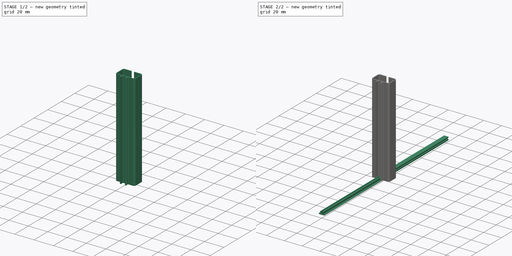
[diagram: build sequence overview — one tinted view per stage of 2, left to right]
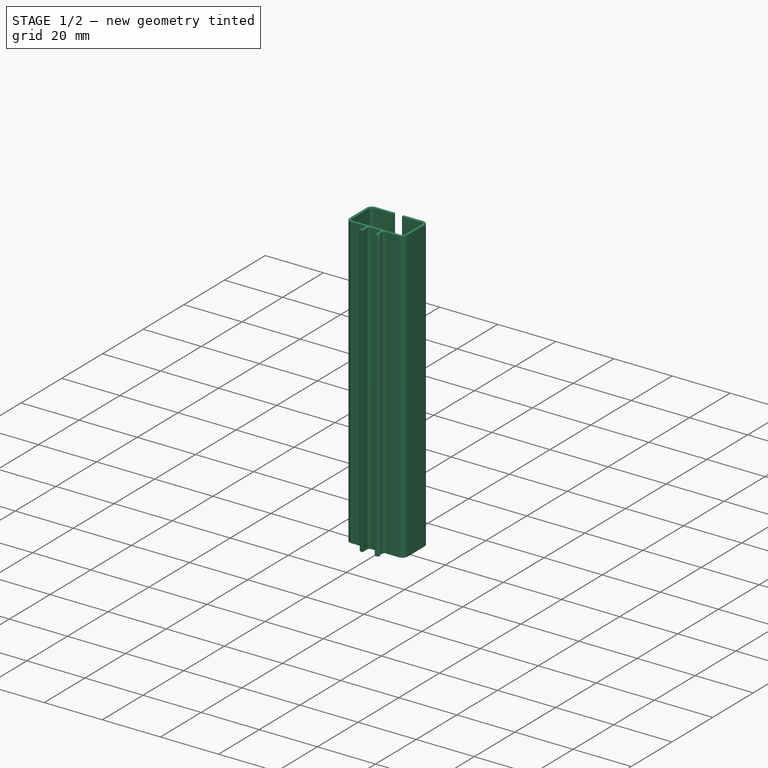
[diagram: stage 1 of 2 — iso view after this stage's code; geometry added in this stage tinted green]
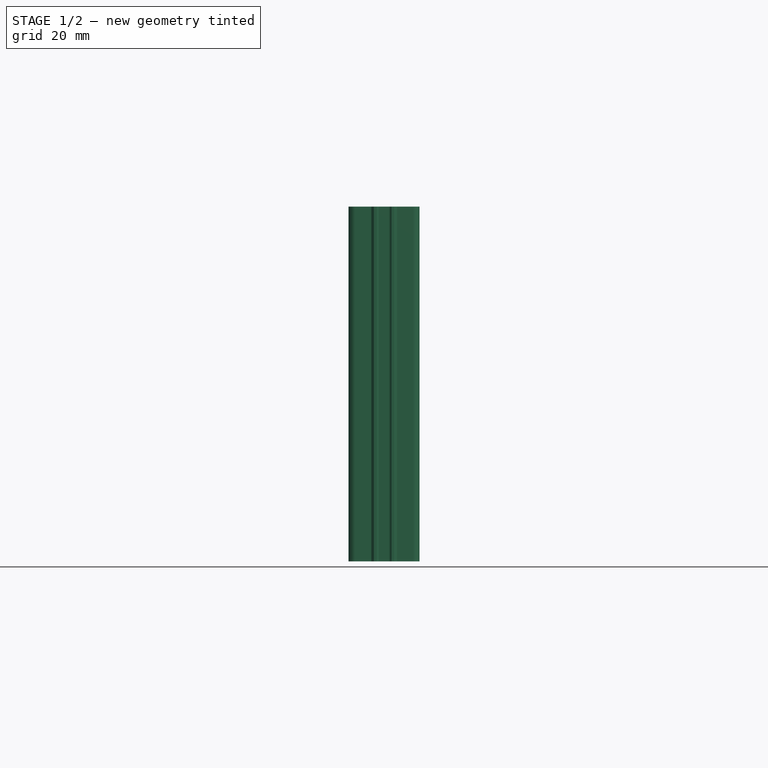
[diagram: stage 1 of 2 — front view after this stage's code; geometry added in this stage tinted green]
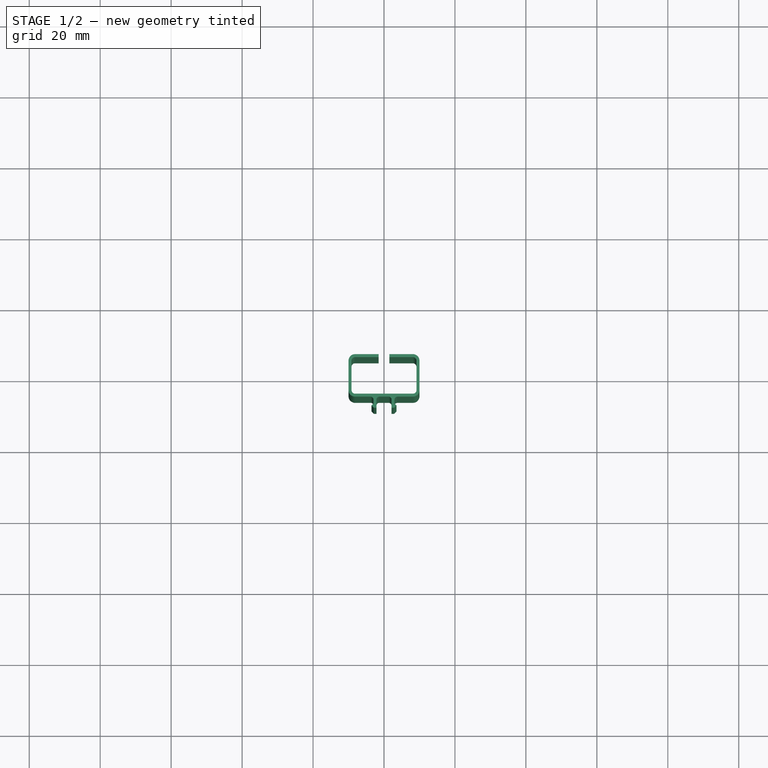
[diagram: stage 1 of 2 — top view after this stage's code; geometry added in this stage tinted green]
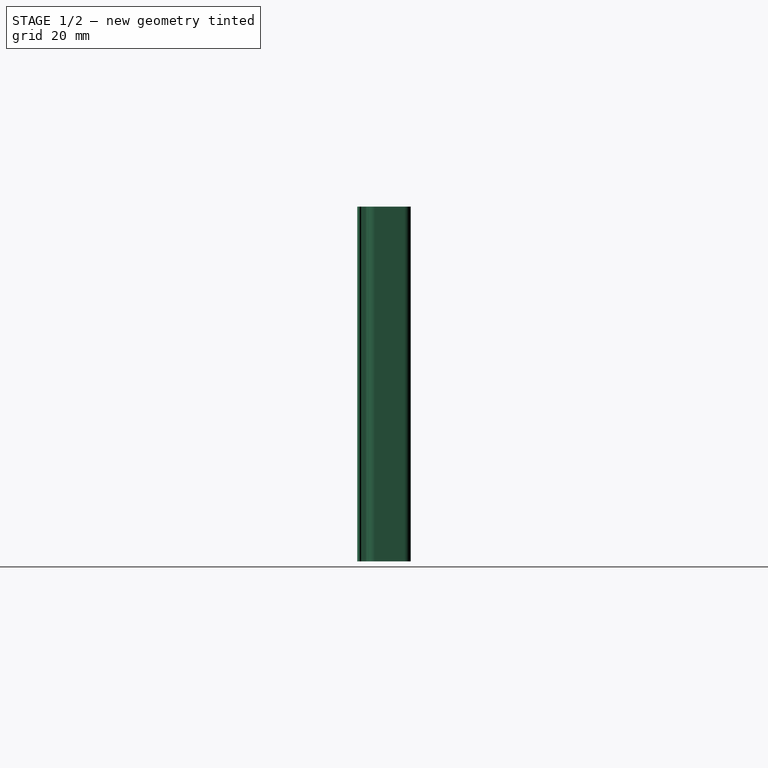
[diagram: stage 1 of 2 — right view after this stage's code; geometry added in this stage tinted green]
FCSTD DOCUMENT  (FreeCAD 0.19R24366 (Git))
Label: CableGuide
License: All rights reserved
LicenseURL: http://en.wikipedia.org/wiki/All_rights_reserved
objects: Sketcher::SketchObject×3, PartDesign::Pad×3, PartDesign::Body×3, Spreadsheet::Sheet×1, PartDesign::Fillet×1
note: 14 computed .brp shape members not serialized (recipe doc carries the construction recipe); baked Part::Feature solids carry a one-line shape summary decoded from their .brp

FEATURE [PartDesign::Body] Body  label="Cap2Body"
  Group = -> [Sketch003,Pad003]
  Origin = -> Origin003
  Tip = -> Pad003
FEATURE [Sketcher::SketchObject] Sketch004  label="guide"
  FullyConstrained = true
  MapMode = 5
  Support = -> [XY_Plane004]
  expr: Constraints[99] = Spreadsheet.hostthickness + Spreadsheet.thickness * 1.3
  expr: Constraints[50] = Spreadsheet.thickness
  expr: Constraints[83] = Spreadsheet.height
  expr: Constraints[94] = Spreadsheet.thickness * 0.8
  expr: Constraints[89] = Spreadsheet.thickness / 2
  expr: Constraints[114] = Spreadsheet.fixthickness
  expr: Constraints[86] = Spreadsheet.hostthickness
  expr: Constraints[90] = Spreadsheet.lockoverhang
  expr: Constraints[91] = Spreadsheet.gap
  expr: Constraints[81] = Spreadsheet.width
  sketch-geometry (42):
    g0: LineSegment StartX=-10 StartY=4.15 StartZ=0 EndX=-10 EndY=-4.15 EndZ=0
    g1: LineSegment StartX=-8.15 StartY=-6 StartZ=0 EndX=-2.975 EndY=-6 EndZ=0
    g2: LineSegment StartX=-2.975 StartY=-6 StartZ=0 EndX=-2.975 EndY=-8 EndZ=0
    g3: LineSegment StartX=-2.845 StartY=-9.105 StartZ=0 EndX=-2.125 EndY=-9.105 EndZ=0
    g4: LineSegment StartX=-2.125 StartY=-9.105 StartZ=0 EndX=-2.125 EndY=-6.8 EndZ=0
    g5: LineSegment StartX=-1.325 StartY=-6 StartZ=0 EndX=1.325 EndY=-6 EndZ=0
    g6: LineSegment StartX=2.125 StartY=-6.8 StartZ=0 EndX=2.125 EndY=-9.105 EndZ=0
    g7: LineSegment StartX=2.125 StartY=-9.105 StartZ=0 EndX=2.845 EndY=-9.105 EndZ=0
    g8: LineSegment StartX=2.975 StartY=-8 StartZ=0 EndX=2.975 EndY=-6 EndZ=0
    g9: LineSegment StartX=2.975 StartY=-6 StartZ=0 EndX=8.15 EndY=-6 EndZ=0
    g10: LineSegment StartX=10 StartY=-4.15 StartZ=0 EndX=10 EndY=4.15 EndZ=0
    g11: LineSegment StartX=8.15 StartY=6 StartZ=0 EndX=1.5 EndY=6 EndZ=0
    g12: LineSegment StartX=1.5 StartY=6 StartZ=0 EndX=1.5 EndY=5.15 EndZ=0
    g13: LineSegment StartX=1.5 StartY=5.15 StartZ=0 EndX=8.15 EndY=5.15 EndZ=0
    g14: LineSegment StartX=9.15 StartY=4.15 StartZ=0 EndX=9.15 EndY=-4.15 EndZ=0
    g15: LineSegment StartX=8.15 StartY=-5.15 StartZ=0 EndX=-8.15 EndY=-5.15 EndZ=0
    g16: LineSegment StartX=-9.15 StartY=-4.15 StartZ=0 EndX=-9.15 EndY=4.15 EndZ=0
    g17: LineSegment StartX=-8.15 StartY=5.15 StartZ=0 EndX=-1.5 EndY=5.15 EndZ=0
    g18: LineSegment StartX=-1.5 StartY=5.15 StartZ=0 EndX=-1.5 EndY=6 EndZ=0
    g19: LineSegment StartX=-1.5 StartY=6 StartZ=0 EndX=-8.15 EndY=6 EndZ=0
    g20: LineSegment StartX=-2.845 StartY=-9.105 StartZ=0 EndX=-3.525 EndY=-8.425 EndZ=0
    g21: LineSegment StartX=-3.525 StartY=-8.425 StartZ=0 EndX=-2.975 EndY=-8 EndZ=0
    g22: LineSegment StartX=2.845 StartY=-9.105 StartZ=0 EndX=3.525 EndY=-8.425 EndZ=0
    g23: LineSegment StartX=3.525 StartY=-8.425 StartZ=0 EndX=2.975 EndY=-8 EndZ=0
    g24: ArcOfCircle CenterX=-8.15 CenterY=4.15 CenterZ=0 NormalX=0 NormalY=0 NormalZ=1 AngleXU=0 Radius=1 StartAngle=1.5708 EndAngle=3.14159
    g25: ArcOfCircle CenterX=8.15 CenterY=4.15 CenterZ=0 NormalX=0 NormalY=0 NormalZ=1 AngleXU=0 Radius=1 StartAngle=1.8148e-07 EndAngle=1.5708
    g26: LineSegment StartX=-9.15 StartY=4.15 StartZ=0 EndX=-10 EndY=4.15 EndZ=0
    g27: LineSegment StartX=9.15 StartY=4.15 StartZ=0 EndX=10 EndY=4.15 EndZ=0
    g28: LineSegment StartX=2.975 StartY=-6 StartZ=0 EndX=2.975 EndY=-5.15 EndZ=0
    g29: ArcOfCircle CenterX=8.15 CenterY=-4.15 CenterZ=0 NormalX=0 NormalY=0 NormalZ=1 AngleXU=0 Radius=1 StartAngle=4.71239 EndAngle=6.28319
    g30: ArcOfCircle CenterX=-8.15 CenterY=-4.15 CenterZ=0 NormalX=0 NormalY=0 NormalZ=1 AngleXU=0 Radius=1 StartAngle=3.14159 EndAngle=4.71239
    g31: ArcOfCircle CenterX=8.15 CenterY=-4.15 CenterZ=0 NormalX=0 NormalY=0 NormalZ=1 AngleXU=0 Radius=1.85 StartAngle=4.71239 EndAngle=6.28319
    g32: ArcOfCircle CenterX=-8.15 CenterY=-4.15 CenterZ=0 NormalX=0 NormalY=0 NormalZ=1 AngleXU=0 Radius=1.85 StartAngle=3.14159 EndAngle=4.71239
    g33: ArcOfCircle CenterX=-8.15 CenterY=4.15 CenterZ=0 NormalX=0 NormalY=0 NormalZ=1 AngleXU=0 Radius=1.85 StartAngle=1.5708 EndAngle=3.14159
    g34: ArcOfCircle CenterX=8.15 CenterY=4.15 CenterZ=0 NormalX=0 NormalY=0 NormalZ=1 AngleXU=0 Radius=1.85 StartAngle=9.80976e-08 EndAngle=1.5708
    g35: LineSegment StartX=-1.5 StartY=6 StartZ=0 EndX=1.5 EndY=6 EndZ=0
    g36: ArcOfCircle CenterX=-1.325 CenterY=-6.8 CenterZ=0 NormalX=0 NormalY=0 NormalZ=1 AngleXU=0 Radius=0.8 StartAngle=1.5708 EndAngle=3.14159
    g37: ArcOfCircle CenterX=1.325 CenterY=-6.8 CenterZ=0 NormalX=0 NormalY=0 NormalZ=1 AngleXU=0 Radius=0.8 StartAngle=1.038e-13 EndAngle=1.5708
    g38: LineSegment StartX=-2.125 StartY=-6.8 StartZ=0 EndX=-2.975 EndY=-6.8 EndZ=0
    g39: LineSegment StartX=2.125 StartY=-6.8 StartZ=0 EndX=2.975 EndY=-6.8 EndZ=0
    g40: LineSegment StartX=-2.975 StartY=-6 StartZ=0 EndX=-1.325 EndY=-6 EndZ=0
    g41: LineSegment StartX=1.325 StartY=-6 StartZ=0 EndX=2.975 EndY=-6 EndZ=0
  constraints (119):
    c: Coincident(g1,g32)
    c: Coincident(g0,g32)
    c: Coincident(g0,g26)
    c: Coincident(g0,g33)
    c: Coincident(g19,g33)
    c: Coincident(g18,g19)
    c: Coincident(g17,g18)
    c: Coincident(g17,g24)
    c: Coincident(g16,g24)
    c: Coincident(g16,g26)
    c: Coincident(g24,g33)
    c: Coincident(g16,g30)
    c: Coincident(g15,g30)
    c: Coincident(g15,g29)
    c: Coincident(g14,g29)
    c: Coincident(g14,g25)
    c: Coincident(g14,g27)
    c: Coincident(g13,g25)
    c: Coincident(g12,g13)
    c: Coincident(g11,g12)
    c: Coincident(g10,g34)
    c: Coincident(g10,g31)
    c: Coincident(g8,g9)
    c: Coincident(g8,g28)
    c: Coincident(g8,g23)
    c: Coincident(g22,g23)
    c: Coincident(g7,g22)
    c: Coincident(g6,g7)
    c: Coincident(g3,g4)
    c: Coincident(g3,g20)
    c: Coincident(g20,g21)
    c: Coincident(g2,g21)
    c: Coincident(g1,g2)
    c: Horizontal(g1)
    c: Horizontal(g5)
    c: Horizontal(g9)
    c: Horizontal(g3)
    c: Horizontal(g7)
    c: Horizontal(g27)
    c: Horizontal(g26)
    c: Horizontal(g19)
    c: Vertical(g0)
    c: Vertical(g18)
    c: Vertical(g12)
    c: Vertical(g14)
    c: Vertical(g28)
    c: Vertical(g6)
    c: Vertical(g8)
    c: Vertical(g4)
    c: Vertical(g2)
    c: DistanceY(g18,g18) = 0.85
    c: Equal(g18,g26)
    c: Equal(g26,g27)
    c: Equal(g27,g28)
    c: Coincident(g35,g18)
    c: Coincident(g35,g11)
    c: Horizontal(g35)
    c: Radius(g24) = 1
    c: Equal(g24,g30)
    c: Equal(g30,g29)
    c: Equal(g29,g25)
    c: Coincident(g32,g30)
    c: Tangent(g32,g0)
    c: Tangent(g32,g1)
    c: Tangent(g33,g19)
    c: Tangent(g24,g17)
    c: Tangent(g24,g16)
    c: Tangent(g30,g16)
    c: Tangent(g30,g15)
    c: Tangent(g15,g29)
    c: Tangent(g29,g14)
    c: Tangent(g10,g31)
    c: Coincident(g31,g29)
    c: Horizontal(g15)
    c: Equal(g18,g12)
    c: Coincident(g34,g25)
    c: Tangent(g25,g13)
    c: Tangent(g25,g14)
    c: Coincident(g10,g27)
    c: DistanceX(g35,g35) = 3  'Opening'
    c: Symmetric(g17,g13,g-2)
    c: DistanceX(g0,g10) = 20
    c: Symmetric(g1,g19,g-1)
    c: DistanceY(g1,g19) = 12
    c: Equal(g4,g6)
    c: Equal(g2,g8)
    c: DistanceY(g2,g2) = 2
    c: Equal(g21,g23)
    c: Equal(g20,g22)
    c: DistanceY(g20,g2) = 0.425
    c: DistanceX(g20,g2) = 0.55
    c: DistanceX(g1,g8) = 5.95
    c: Symmetric(g8,g1,g-2)
    c: Equal(g3,g7)
    c: DistanceX(g20,g3) = 0.68
    c: Tangent(g4,g36) = 1.5708
    c: Tangent(g5,g36) = 1.5708
    c: Tangent(g5,g37) = 1.5708
    c: Tangent(g6,g37) = 1.5708
    c: DistanceY(g3,g5) = 3.105
    c: Radius(g36) = 0.8
    c: Equal(g36,g37)
    c: Coincident(g38,g4)
    c: PointOnObject(g38,g2)
    c: Horizontal(g38)
    c: Coincident(g39,g6)
    c: PointOnObject(g39,g8)
    c: Horizontal(g39)
    c: Equal(g38,g39)
    c: Coincident(g40,g5)
    c: Coincident(g1,g40)
    c: Horizontal(g40)
    c: Coincident(g41,g5)
    c: Coincident(g41,g8)
    c: DistanceX(g38,g38) = 0.85
    c: Equal(g13,g17)
    c: Tangent(g11,g34) = -1.5708
    c: Tangent(g9,g31) = -1.5708
    c: DistanceX(g20,g22) = 7.05
FEATURE [PartDesign::Pad] Pad
  AllowMultiFace = false
  Direction = (1,1,1)
  Length = 100
  Length2 = 100
  Profile = -> Sketch004
  Type = 0
  expr: Length = Spreadsheet.length
FEATURE [PartDesign::Fillet] Fillet
  Base = -> Pad [Edge20,Edge59]
  BaseFeature = -> Pad
  Radius = 0.8
  SupportTransform = false
FEATURE [PartDesign::Body] Body001  label="GuideBody"
  Group = -> [Sketch004,Pad,Fillet]
  Origin = -> Origin004
  Tip = -> Fillet
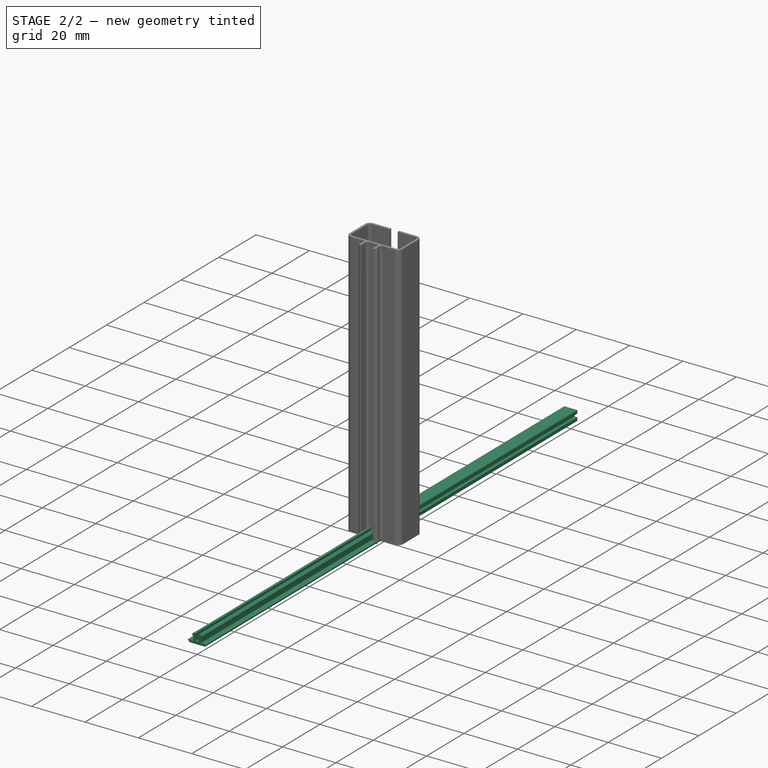
[diagram: stage 2 of 2 — iso view after this stage's code; geometry added in this stage tinted green]
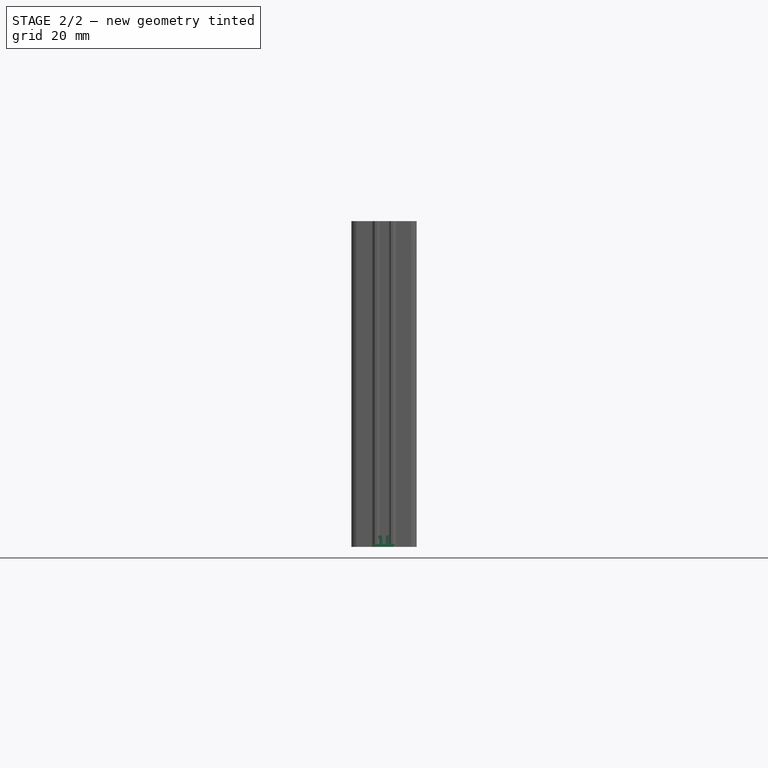
[diagram: stage 2 of 2 — front view after this stage's code; geometry added in this stage tinted green]
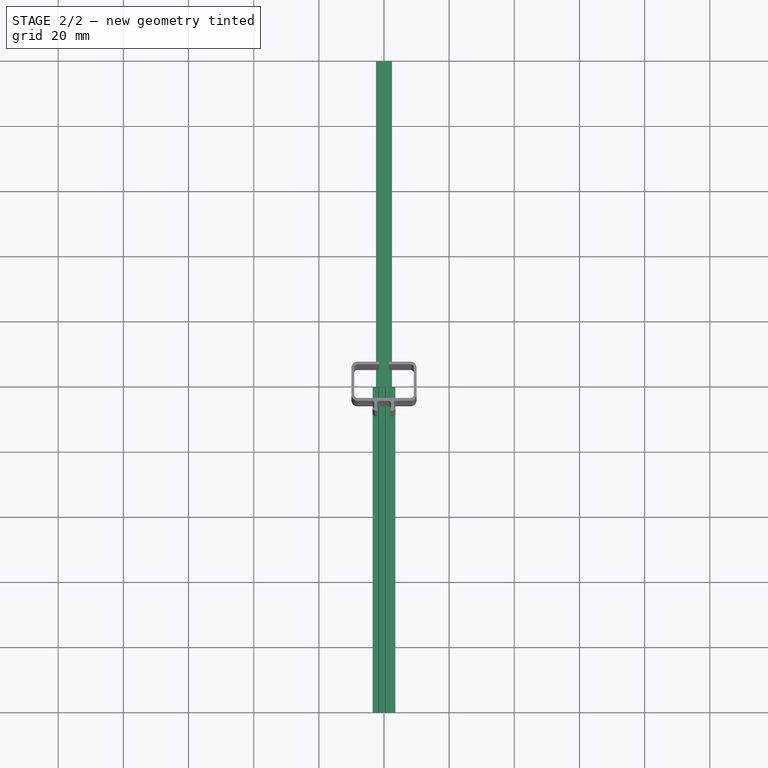
[diagram: stage 2 of 2 — top view after this stage's code; geometry added in this stage tinted green]
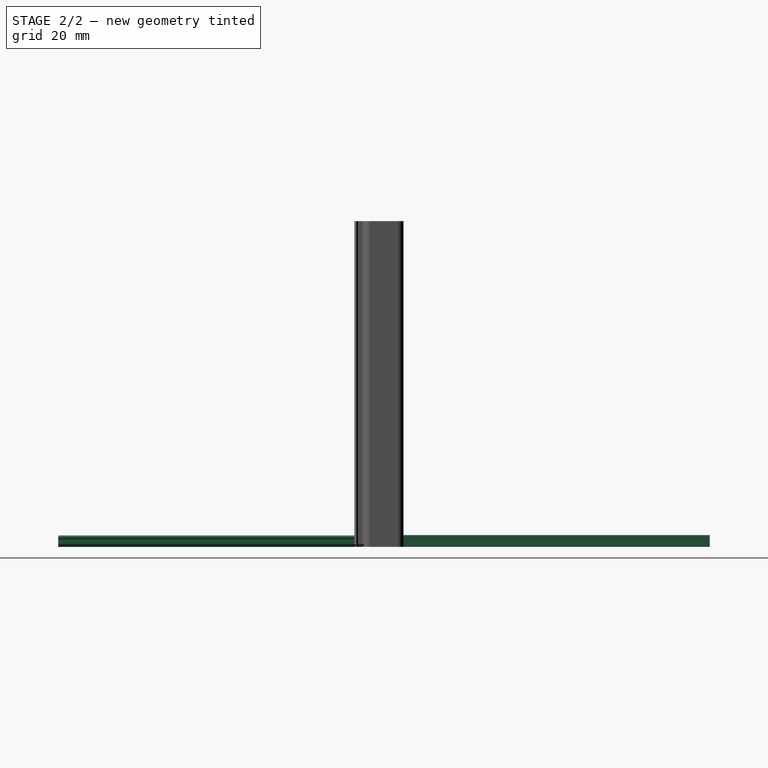
[diagram: stage 2 of 2 — right view after this stage's code; geometry added in this stage tinted green]
FEATURE [Spreadsheet::Sheet] Spreadsheet
  cells = B2=width; C2(width)==20mm; B3=height; C3(height)==12mm; B4=thickness; C4(thickness)==0.85mm; B5=length; C5(length)==100mm; B7=gap; C7(gap)==5.95mm; B8=topgap; C8(topgap)==3mm; B9=hostthickness; C9(hostthickness)==2mm; B10=fixthickness; C10(fixthickness)==0.85mm; B11=lockoverhang; C11(lockoverhang)==0.55mm
FEATURE [Sketcher::SketchObject] Sketch002  label="cap"
  FullyConstrained = true
  MapMode = 5
  Placement = pos=(0,0,0) rot=(0,0.707107,0.707107;3.14159rad)
  Support = -> [XZ_Plane002]
  expr: Constraints[22] = Spreadsheet.thickness + 0.35mm
  expr: Constraints[30] = Spreadsheet.topgap + Spreadsheet.thickness * 2 + 0.2mm
  sketch-geometry (12):
    g0: LineSegment StartX=-2.45 StartY=0 StartZ=0 EndX=2.45 EndY=2.2672e-12 EndZ=0
    g1: LineSegment StartX=2.45 StartY=2.2672e-12 StartZ=0 EndX=2.45 EndY=1.21 EndZ=0
    g2: LineSegment StartX=2.45 StartY=1.21 StartZ=0 EndX=1.35 EndY=1.21 EndZ=0
    g3: LineSegment StartX=1.35 StartY=1.21 StartZ=0 EndX=1.35 EndY=2.41 EndZ=0
    g4: LineSegment StartX=1.35 StartY=2.41 StartZ=0 EndX=2.45 EndY=2.41 EndZ=0
    g5: LineSegment StartX=2.45 StartY=2.41 StartZ=0 EndX=2.45 EndY=3.62 EndZ=0
    g6: LineSegment StartX=-2.45 StartY=3.62 StartZ=0 EndX=-2.45 EndY=2.41 EndZ=0
    g7: LineSegment StartX=-2.45 StartY=2.41 StartZ=0 EndX=-1.35 EndY=2.41 EndZ=0
    g8: LineSegment StartX=-1.35 StartY=2.41 StartZ=0 EndX=-1.35 EndY=1.21 EndZ=0
    g9: LineSegment StartX=-1.35 StartY=1.21 StartZ=0 EndX=-2.45 EndY=1.21 EndZ=0
    g10: LineSegment StartX=-2.45 StartY=3.62 StartZ=0 EndX=2.45 EndY=3.62 EndZ=0
    g11: LineSegment StartX=-2.45 StartY=0 StartZ=0 EndX=-2.45 EndY=1.21 EndZ=0
  constraints (35):
    c: PointOnObject(g0,g-1)
    c: Coincident(g0,g1)
    c: Coincident(g1,g2)
    c: Horizontal(g2)
    c: Coincident(g2,g3)
    c: Coincident(g3,g4)
    c: Horizontal(g4)
    c: Coincident(g4,g5)
    c: Coincident(g6,g7)
    c: Horizontal(g7)
    c: Coincident(g7,g8)
    c: Vertical(g8)
    c: Coincident(g8,g9)
    c: Horizontal(g9)
    c: Vertical(g3)
    c: Vertical(g5)
    c: Vertical(g1)
    c: Vertical(g6)
    c: Coincident(g6,g10)
    c: Coincident(g11,g0)
    c: Coincident(g11,g9)
    c: Vertical(g11)
    c: DistanceY(g9,g6) = 1.2
    c: DistanceY(g11,g11) = 1.21
    c: Equal(g11,g6)
    c: Equal(g11,g1)
    c: Equal(g3,g8)
    c: Equal(g6,g5)
    c: DistanceX(g8,g2) = 2.7
    c: Coincident(g5,g10)
    c: DistanceX(g10,g10) = 4.9
    c: Equal(g0,g10)
    c: PointOnObject(g9,g6)
    c: Equal(g7,g4)
    c: Symmetric(g6,g5,g-2)
FEATURE [PartDesign::Pad] Pad002  label="Cap"
  AllowMultiFace = false
  Direction = (1,1,1)
  Length = 100
  Length2 = 100
  Placement = pos=(0,0,0) rot=(1,0,0;1.5708rad)
  Profile = -> Sketch002
  Type = 0
  expr: Length = Spreadsheet.length
FEATURE [PartDesign::Body] Pad002Body  label="CapBody"
  Group = -> [Sketch002,Pad002]
  Origin = -> Origin002
  Tip = -> Pad002
FEATURE [Sketcher::SketchObject] Sketch003  label="cap2"
  FullyConstrained = true
  MapMode = 5
  Placement = pos=(0,0,0) rot=(1,0,0;1.5708rad)
  Support = -> [XZ_Plane003]
  expr: Constraints[72] = Sketch004.Constraints.Opening + 4mm
  expr: Constraints[46] = Sketch004.Constraints.Opening - 0.15mm
  sketch-geometry (30):
    g0: LineSegment StartX=-0.575 StartY=3.55 StartZ=0 EndX=-0.575 EndY=1.35 EndZ=0
    g1: LineSegment StartX=-0.075 StartY=0.85 StartZ=0 EndX=0.075 EndY=0.85 EndZ=0
    g2: LineSegment StartX=0.575 StartY=1.35 StartZ=0 EndX=0.575 EndY=3.55 EndZ=0
    g3: LineSegment StartX=0.575 StartY=3.55 StartZ=0 EndX=1.425 EndY=3.55 EndZ=0
    g4: LineSegment StartX=1.425 StartY=3.55 StartZ=0 EndX=1.825 EndY=3.15 EndZ=0
    g5: LineSegment StartX=1.825 StartY=3.15 StartZ=0 EndX=1.825 EndY=2.75 EndZ=0
    g6: LineSegment StartX=1.825 StartY=2.75 StartZ=0 EndX=1.425 EndY=2.35 EndZ=0
    g7: LineSegment StartX=1.425 StartY=2.35 StartZ=0 EndX=1.425 EndY=0.85 EndZ=0
    g8: LineSegment StartX=1.425 StartY=0.85 StartZ=0 EndX=3.5 EndY=0.85 EndZ=0
    g9: LineSegment StartX=3.5 StartY=0.85 StartZ=0 EndX=2.90482 EndY=0 EndZ=0
    g10: LineSegment StartX=2.90482 StartY=0 StartZ=0 EndX=-2.90482 EndY=0 EndZ=0
    g11: LineSegment StartX=-2.90482 StartY=0 StartZ=0 EndX=-3.5 EndY=0.85 EndZ=0
    g12: LineSegment StartX=-3.5 StartY=0.85 StartZ=0 EndX=-1.425 EndY=0.85 EndZ=0
    g13: LineSegment StartX=-1.425 StartY=0.85 StartZ=0 EndX=-1.425 EndY=2.35 EndZ=0
    g14: LineSegment StartX=-1.425 StartY=2.35 StartZ=0 EndX=-1.825 EndY=2.75 EndZ=0
    g15: LineSegment StartX=-1.825 StartY=2.75 StartZ=0 EndX=-1.825 EndY=3.15 EndZ=0
    g16: LineSegment StartX=-1.825 StartY=3.15 StartZ=0 EndX=-1.425 EndY=3.55 EndZ=0
    g17: LineSegment StartX=-1.425 StartY=3.55 StartZ=0 EndX=-0.575 EndY=3.55 EndZ=0
    g18: LineSegment StartX=-0.575 StartY=3.55 StartZ=0 EndX=0.575 EndY=3.55 EndZ=0
    g19: LineSegment StartX=1.425 StartY=3.55 StartZ=0 EndX=1.425 EndY=2.35 EndZ=0
    g20: LineSegment StartX=-1.425 StartY=2.35 StartZ=0 EndX=-1.425 EndY=3.55 EndZ=0
    g21: LineSegment StartX=-1.425 StartY=0.85 StartZ=0 EndX=-0.075 EndY=0.85 EndZ=0
    g22: LineSegment StartX=0.075 StartY=0.85 StartZ=0 EndX=1.425 EndY=0.85 EndZ=0
    g23: ArcOfCircle CenterX=-0.075 CenterY=1.35 CenterZ=0 NormalX=0 NormalY=0 NormalZ=1 AngleXU=0 Radius=0.5 StartAngle=3.14159 EndAngle=4.71239
    g24: ArcOfCircle CenterX=0.075 CenterY=1.35 CenterZ=0 NormalX=0 NormalY=0 NormalZ=1 AngleXU=0 Radius=0.5 StartAngle=4.71239 EndAngle=6.28319
    g25: LineSegment StartX=-0.075 StartY=1.35 StartZ=0 EndX=-0.575 EndY=1.35 EndZ=0
    g26: LineSegment StartX=0.075 StartY=1.35 StartZ=0 EndX=0.575 EndY=1.35 EndZ=0
    g27: LineSegment StartX=0.075 StartY=1.35 StartZ=0 EndX=0.075 EndY=0.85 EndZ=0
    g28: LineSegment StartX=-0.075 StartY=1.35 StartZ=0 EndX=-0.075 EndY=0.85 EndZ=0
    g29: LineSegment StartX=-2.90482 StartY=0 StartZ=0 EndX=-2.90482 EndY=0.85 EndZ=0
  constraints (81):
    c: Vertical(g0)
    c: Horizontal(g1)
    c: Vertical(g2)
    c: Coincident(g2,g3)
    c: Horizontal(g3)
    c: Coincident(g3,g4)
    c: Coincident(g4,g5)
    c: Vertical(g5)
    c: Coincident(g5,g6)
    c: Coincident(g6,g7)
    c: Vertical(g7)
    c: Coincident(g7,g8)
    c: Horizontal(g8)
    c: Coincident(g8,g9)
    c: Coincident(g11,g12)
    c: Horizontal(g12)
    c: Coincident(g12,g13)
    c: Vertical(g13)
    c: Coincident(g13,g14)
    c: Coincident(g14,g15)
    c: Coincident(g15,g16)
    c: Coincident(g16,g17)
    c: Coincident(g17,g0)
    c: Horizontal(g17)
    c: Coincident(g18,g0)
    c: Coincident(g18,g2)
    c: Horizontal(g18)
    c: Coincident(g19,g3)
    c: Coincident(g19,g6)
    c: Coincident(g20,g13)
    c: Coincident(g20,g16)
    c: Vertical(g20)
    c: Vertical(g19)
    c: Vertical(g15)
    c: Equal(g6,g4)
    c: Equal(g3,g17)
    c: Coincident(g21,g12)
    c: Coincident(g22,g7)
    c: Horizontal(g21)
    c: Equal(g12,g8)
    c: Equal(g13,g7)
    c: Equal(g14,g16)
    c: Equal(g15,g5)
    c: Equal(g16,g4)
    c: Symmetric(g12,g7,g-2)
    c: DistanceX(g17,g17) = 0.85
    c: DistanceX(g16,g3) = 2.85
    c: DistanceY(g13,g13) = 1.5
    c: Angle(g19,g4) = 0.785398
    c: PointOnObject(g-1,g10)
    c: Coincident(g23,g0)
    c: Coincident(g23,g21)
    c: Coincident(g24,g2)
    c: Coincident(g24,g22)
    c: Coincident(g25,g23)
    c: Coincident(g25,g0)
    c: Coincident(g26,g24)
    c: Horizontal(g26)
    c: Coincident(g27,g24)
    c: Coincident(g27,g22)
    c: Coincident(g28,g23)
    c: Coincident(g28,g21)
    c: Horizontal(g25)
    c: Vertical(g28)
    c: Vertical(g27)
    c: Coincident(g2,g26)
    c: Coincident(g1,g22)
    c: Coincident(g1,g21)
    c: Radius(g24) = 0.5
    c: Equal(g24,g23)
    c: DistanceX(g15,g16) = 0.4
    c: DistanceY(g15,g15) = 0.4
    c: DistanceX(g11,g8) = 7
    c: Symmetric(g10,g10,g-2)
    c: Coincident(g11,g10)
    c: Coincident(g9,g10)
    c: Angle(g11,g12) = 0.959931
    c: Coincident(g29,g10)
    c: PointOnObject(g29,g12)
    c: Vertical(g29)
    c: Equal(g29,g17)
FEATURE [PartDesign::Pad] Pad003  label="Cap2"
  AllowMultiFace = false
  Direction = (1,1,1)
  Length = 100
  Length2 = 100
  Placement = pos=(0,0,0) rot=(1,0,0;1.5708rad)
  Profile = -> Sketch003
  Type = 0
  expr: Length = Spreadsheet.length
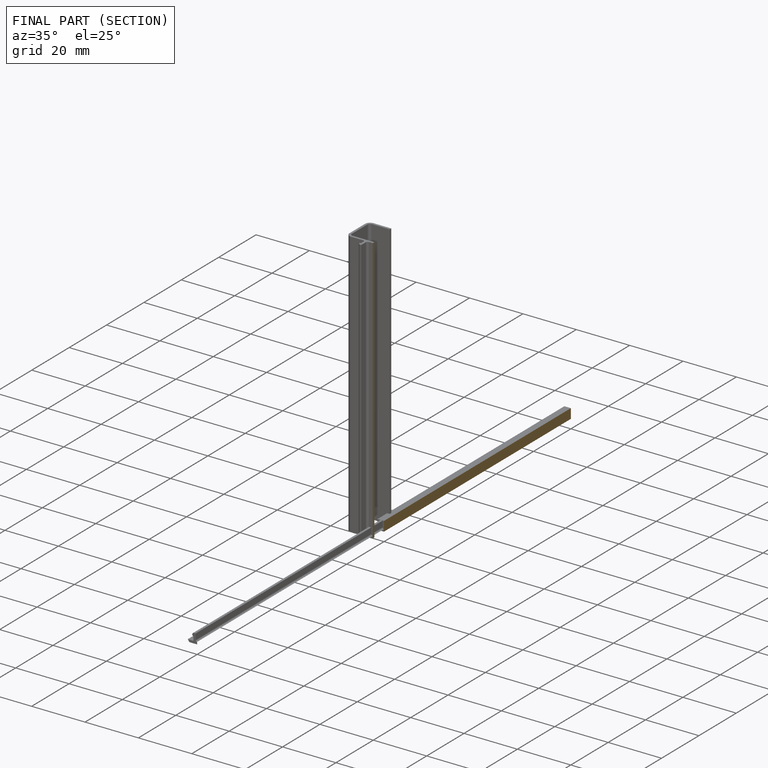
[diagram: finished part — half-section view (interior)]
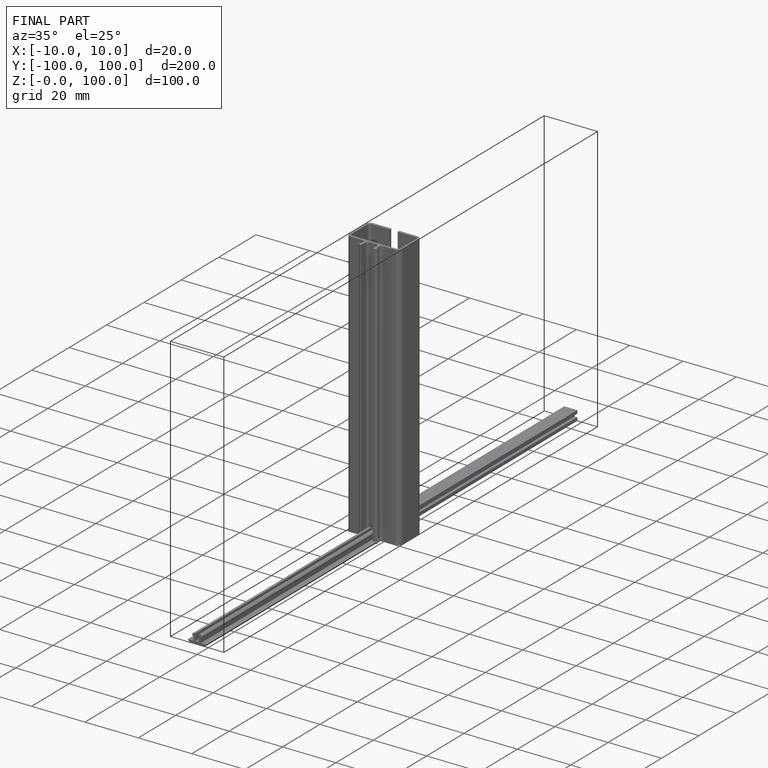
[diagram: finished part — iso view with bounding-box wireframe]
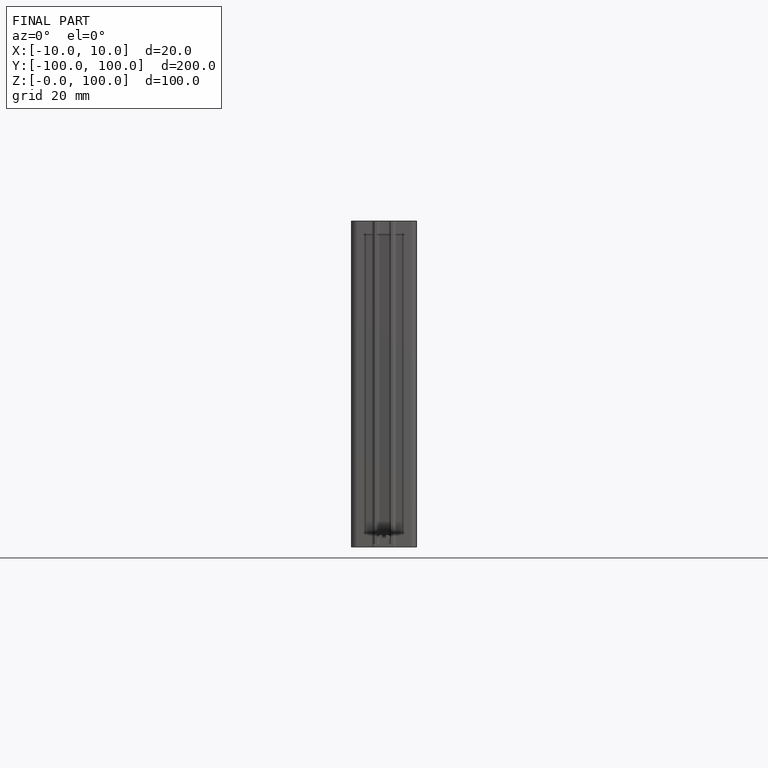
[diagram: finished part — front view with bounding-box wireframe]
